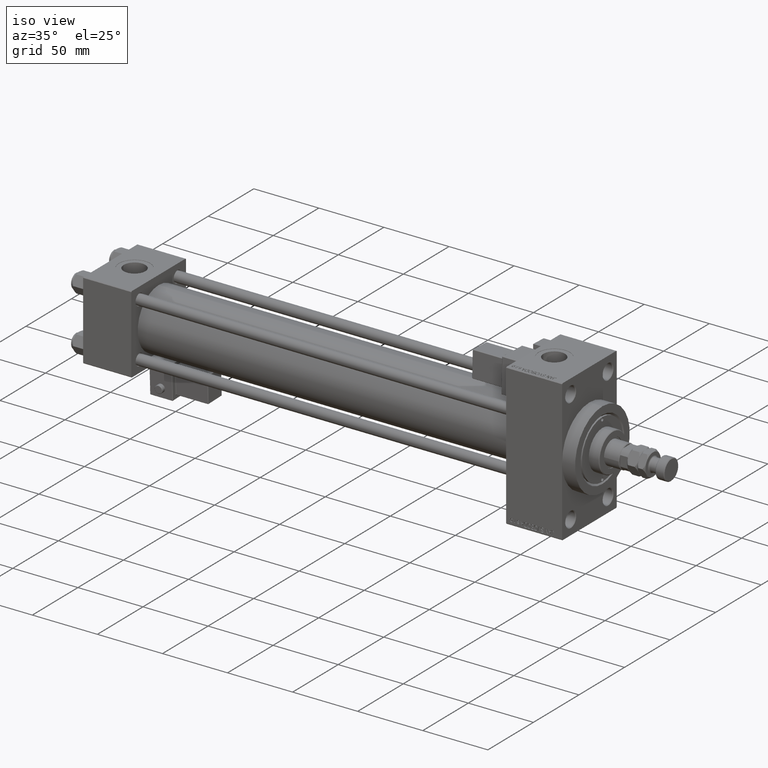
[diagram: clean part render]
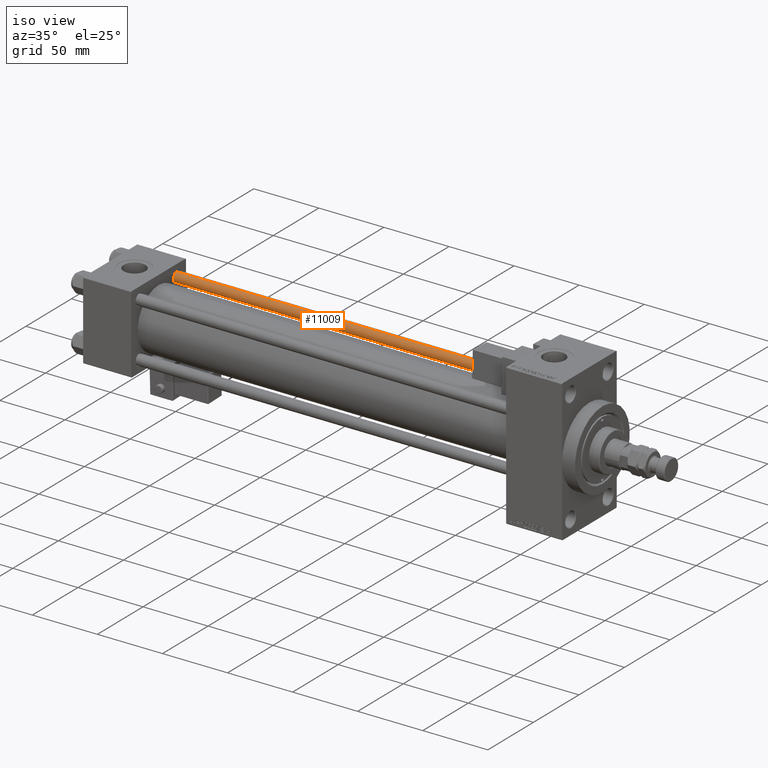
[diagram: same view with one face highlighted and labeled with its STEP entity id]
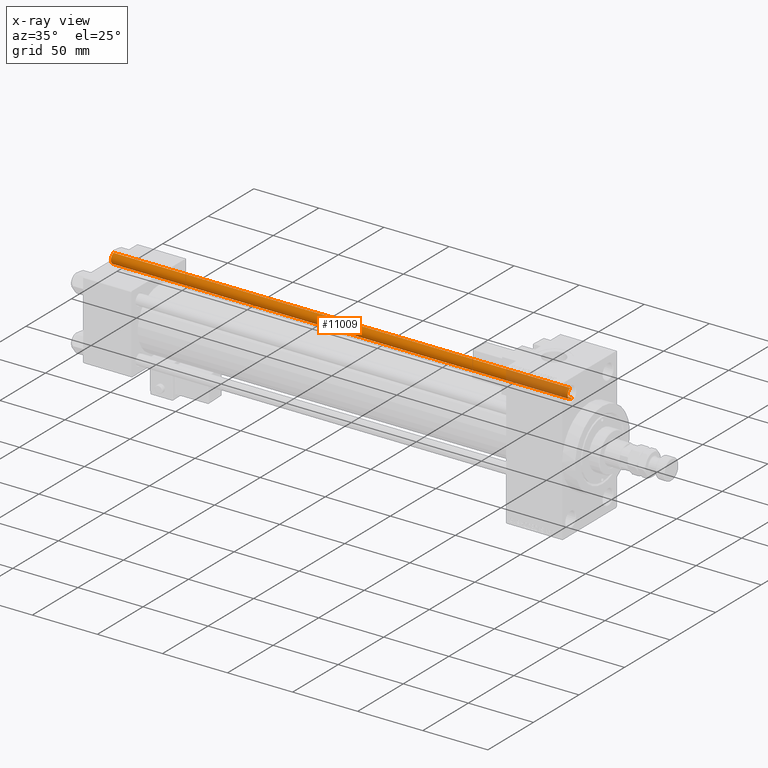
[diagram: x-ray of the same camera — body ghosted, the highlighted face saturated]
A machine part, iso view. The second image highlights one B-rep face of the part: STEP entity #11009.
The next image is the same camera in x-ray: the body ghosted, the highlighted face saturated — about 13% of this face is hidden behind the body in this view.
In plain terms, the highlighted cylindrical surface (edge-blend (fillet) strip) has radius 4 mm, axis along (-1, -0, 0).
Its self-contained STEP definition (entity closure, byte-faithful):
#703 = VERTEX_POINT ( 'NONE', #36915 ) ;
#2999 = CIRCLE ( 'NONE', #17894, 4.000000000000000000 ) ;
#3157 = DIRECTION ( 'NONE',  ( -0.000000000000000000, -0.000000000000000000, 1.000000000000000000 ) ) ;
#4383 = DIRECTION ( 'NONE',  ( -0.000000000000000000, -0.000000000000000000, -1.000000000000000000 ) ) ;
#4928 = VECTOR ( 'NONE', #15087, 1000.000000000000000 ) ;
#5299 = LINE ( 'NONE', #10424, #4928 ) ;
#8784 = LINE ( 'NONE', #24089, #46478 ) ;
#9151 = CARTESIAN_POINT ( 'NONE',  ( 0.000000000000000000, 0.000000000000000000, 352.0000000000000000 ) ) ;
#10424 = CARTESIAN_POINT ( 'NONE',  ( -4.000000000000000000, 0.000000000000000000, 352.0000000000000000 ) ) ;
#11009 = ADVANCED_FACE ( 'NONE', ( #32768 ), #48590, .T. ) ;
#11134 = EDGE_CURVE ( 'NONE', #27125, #44744, #8784, .T. ) ;
#13565 = ORIENTED_EDGE ( 'NONE', *, *, #24529, .T. ) ;
#15087 = DIRECTION ( 'NONE',  ( -0.000000000000000000, -0.000000000000000000, -1.000000000000000000 ) ) ;
#15265 = ORIENTED_EDGE ( 'NONE', *, *, #11134, .F. ) ;
#17894 = AXIS2_PLACEMENT_3D ( 'NONE', #26770, #3157, #42620 ) ;
#22646 = ORIENTED_EDGE ( 'NONE', *, *, #43465, .T. ) ;
#24089 = CARTESIAN_POINT ( 'NONE',  ( 4.000000000000000000, 4.898587196589412829E-16, 352.0000000000000000 ) ) ;
#24529 = EDGE_CURVE ( 'NONE', #25970, #703, #5299, .T. ) ;
#24965 = DIRECTION ( 'NONE',  ( -1.000000000000000000, 0.000000000000000000, 0.000000000000000000 ) ) ;
#25414 = CIRCLE ( 'NONE', #46153, 4.000000000000000000 ) ;
#25970 = VERTEX_POINT ( 'NONE', #35684 ) ;
#26770 = CARTESIAN_POINT ( 'NONE',  ( 0.000000000000000000, 0.000000000000000000, 0.5000000000000004441 ) ) ;
#27125 = VERTEX_POINT ( 'NONE', #33252 ) ;
#28868 = DIRECTION ( 'NONE',  ( -0.000000000000000000, -0.000000000000000000, -1.000000000000000000 ) ) ;
#31230 = CARTESIAN_POINT ( 'NONE',  ( 0.000000000000000000, 0.000000000000000000, 351.5000000000000000 ) ) ;
#32768 = FACE_OUTER_BOUND ( 'NONE', #34650, .T. ) ;
#33252 = CARTESIAN_POINT ( 'NONE',  ( 4.000000000000000000, 4.898587196589412829E-16, 351.5000000000000000 ) ) ;
#34650 = EDGE_LOOP ( 'NONE', ( #15265, #22646, #13565, #41553 ) ) ;
#35637 = DIRECTION ( 'NONE',  ( 1.000000000000000000, 0.000000000000000000, 0.000000000000000000 ) ) ;
#35684 = CARTESIAN_POINT ( 'NONE',  ( -4.000000000000000000, 0.000000000000000000, 351.5000000000000000 ) ) ;
#36915 = CARTESIAN_POINT ( 'NONE',  ( -4.000000000000000000, 0.000000000000000000, 0.5000000000000004441 ) ) ;
#40648 = AXIS2_PLACEMENT_3D ( 'NONE', #9151, #28868, #24965 ) ;
#41540 = EDGE_CURVE ( 'NONE', #703, #44744, #2999, .T. ) ;
#41553 = ORIENTED_EDGE ( 'NONE', *, *, #41540, .T. ) ;
#42620 = DIRECTION ( 'NONE',  ( 1.000000000000000000, 0.000000000000000000, 0.000000000000000000 ) ) ;
#43394 = CARTESIAN_POINT ( 'NONE',  ( 4.000000000000000000, 4.898587196589412829E-16, 0.5000000000000004441 ) ) ;
#43465 = EDGE_CURVE ( 'NONE', #27125, #25970, #25414, .T. ) ;
#44744 = VERTEX_POINT ( 'NONE', #43394 ) ;
#46153 = AXIS2_PLACEMENT_3D ( 'NONE', #31230, #51198, #35637 ) ;
#46478 = VECTOR ( 'NONE', #4383, 1000.000000000000000 ) ;
#48590 = CYLINDRICAL_SURFACE ( 'NONE', #40648, 4.000000000000000000 ) ;
#51198 = DIRECTION ( 'NONE',  ( 0.000000000000000000, 0.000000000000000000, -1.000000000000000000 ) ) ;